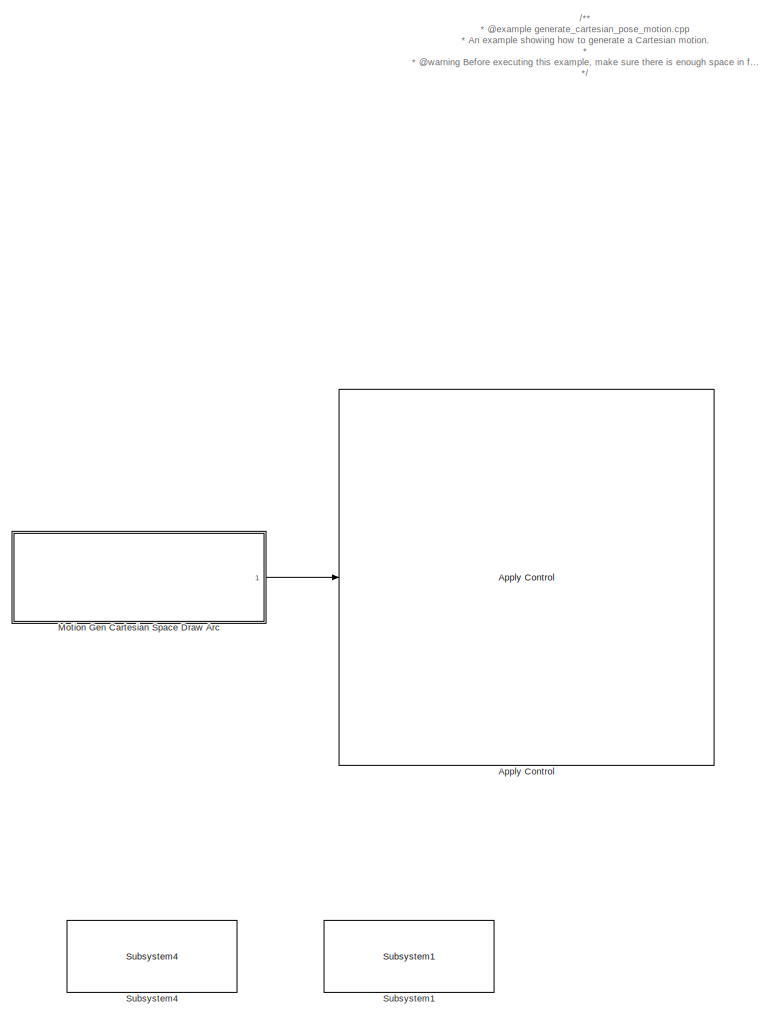
[diagram: root canvas - part 1/4, center side, full height]
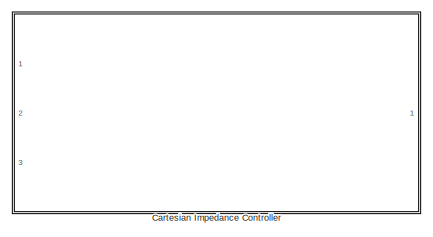
[diagram: root canvas - part 2/4, top left region]
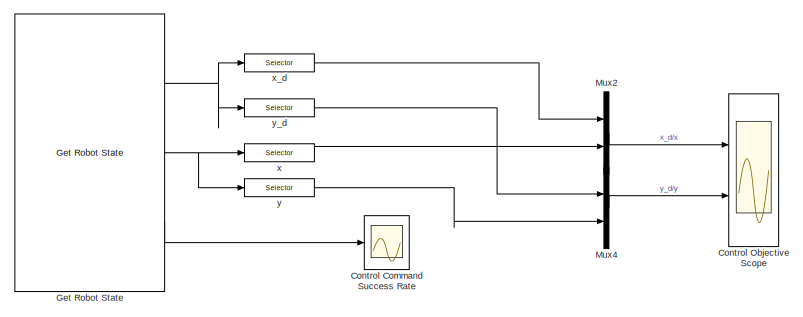
[diagram: root canvas - part 3/4, middle right region]
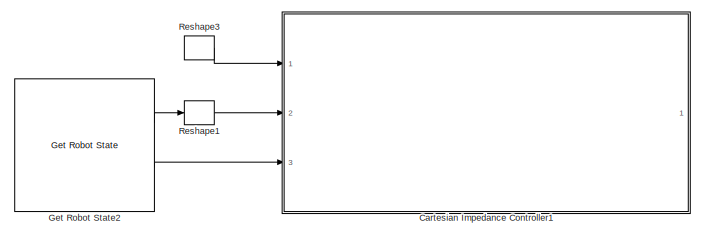
[diagram: root canvas - part 4/4, bottom left region]
MODEL slx_5f6692d43fe2
KIND model
CONFIG AbsTol = auto
CONFIG EnableMultiTasking = on
CONFIG FixedStep = 0.001
CONFIG MaxStep = auto
CONFIG MinStep = auto
CONFIG PreLoadFcn = demos_common_configs();
CONFIG RelTol = 1e-3
CONFIG SampleTimeConstraint = Unconstrained
CONFIG SolverName = FixedStepDiscrete
CONFIG StartTime = 0.0
CONFIG StopTime = inf
BLOCK [Reference] Apply Control  REF=franka_simulink_library/Apply Control
  Ports = [1]
  SourceBlock = franka_simulink_library/Apply Control
  SourceProductName = Franka Emika
  UserDataPersistent = on
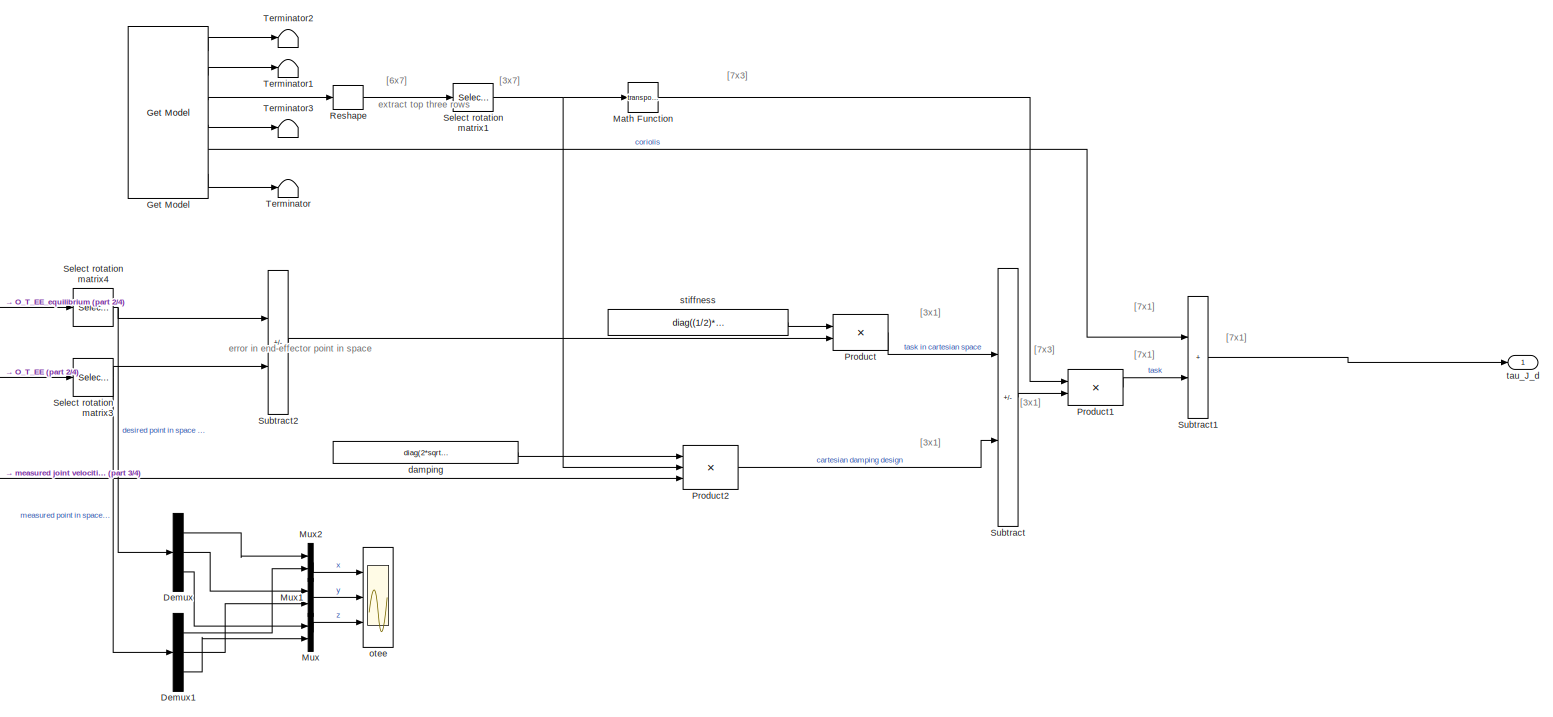
[diagram: Cartesian Impedance Controller - part 1/4, top right region]
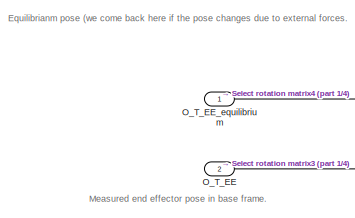
[diagram: Cartesian Impedance Controller - part 2/4, top left region]
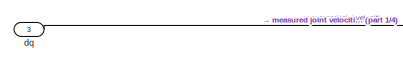
[diagram: Cartesian Impedance Controller - part 3/4, middle left region]
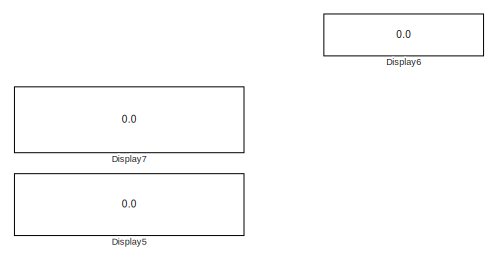
[diagram: Cartesian Impedance Controller - part 4/4, bottom center region]
BLOCK [SubSystem] Cartesian Impedance Controller
  Commented = on
  Ports = [3, 1]
  RequestExecContextInheritance = off
BLOCK [Demux] Cartesian Impedance Controller/Demux
  Outputs = 3
  Ports = [1, 3]
BLOCK [Demux] Cartesian Impedance Controller/Demux1
  Outputs = 3
  Ports = [1, 3]
BLOCK [Display] Cartesian Impedance Controller/Display5
  Decimation = 1
  Ports = [1]
BLOCK [Display] Cartesian Impedance Controller/Display6
  Decimation = 1
  Ports = [1]
BLOCK [Display] Cartesian Impedance Controller/Display7
  Decimation = 1
  Ports = [1]
BLOCK [Reference] Cartesian Impedance Controller/Get Model  REF=franka_simulink_library/Get Model
  Ports = [0, 6]
  SourceBlock = franka_simulink_library/Get Model
  SourceProductName = Franka Emika
BLOCK [Math] Cartesian Impedance Controller/Math Function
  Operator = transpose
  Ports = [1, 1]
  SignedPower = on
BLOCK [Mux] Cartesian Impedance Controller/Mux
  DisplayOption = bar
  Inputs = 2
  Ports = [2, 1]
BLOCK [Mux] Cartesian Impedance Controller/Mux1
  DisplayOption = bar
  Inputs = 2
  Ports = [2, 1]
BLOCK [Mux] Cartesian Impedance Controller/Mux2
  DisplayOption = bar
  Inputs = 2
  Ports = [2, 1]
BLOCK [Inport] Cartesian Impedance Controller/O_T_EE
  Port = 2
BLOCK [Inport] Cartesian Impedance Controller/O_T_EE_equilibrium
BLOCK [Product] Cartesian Impedance Controller/Product
  Multiplication = Matrix(*)
  Ports = [2, 1]
BLOCK [Product] Cartesian Impedance Controller/Product1
  Multiplication = Matrix(*)
  Ports = [2, 1]
BLOCK [Product] Cartesian Impedance Controller/Product2
  Inputs = 3
  Multiplication = Matrix(*)
  Ports = [3, 1]
BLOCK [Reshape] Cartesian Impedance Controller/Reshape
  OutputDimensionality = Customize
  OutputDimensions = [6,7]
  Ports = [1, 1]
BLOCK [Selector] Cartesian Impedance Controller/Select rotation matrix1
  IndexOptions = Index vector (dialog),Index vector (dialog)
  Indices = [1,2,3],[1 2 3 4 5 6 7]
  InputPortWidth = 3
  NumberOfDimensions = 2
  OutputSizes = 1
  Ports = [1, 1]
BLOCK [Selector] Cartesian Impedance Controller/Select rotation matrix3
  IndexOptions = Index vector (dialog),Index vector (dialog)
  Indices = [1,2,3],[4]
  InputPortWidth = 3
  NumberOfDimensions = 2
  OutputSizes = 1
  Ports = [1, 1]
BLOCK [Selector] Cartesian Impedance Controller/Select rotation matrix4
  IndexOptions = Index vector (dialog),Index vector (dialog)
  Indices = [1,2,3],[4]
  InputPortWidth = 3
  NumberOfDimensions = 2
  OutputSizes = 1
  Ports = [1, 1]
BLOCK [Sum] Cartesian Impedance Controller/Subtract
  IconShape = rectangular
  Inputs = +-
  Ports = [2, 1]
BLOCK [Sum] Cartesian Impedance Controller/Subtract1
  IconShape = rectangular
  Ports = [2, 1]
BLOCK [Sum] Cartesian Impedance Controller/Subtract2
  IconShape = rectangular
  Inputs = +-
  Ports = [2, 1]
BLOCK [Terminator] Cartesian Impedance Controller/Terminator
BLOCK [Terminator] Cartesian Impedance Controller/Terminator1
BLOCK [Terminator] Cartesian Impedance Controller/Terminator2
BLOCK [Terminator] Cartesian Impedance Controller/Terminator3
BLOCK [Constant] Cartesian Impedance Controller/damping
  NameLocation = top
  Value = diag(2*sqrt([150.0, 150.0, 150.0]))
  VectorParams1D = off
BLOCK [Inport] Cartesian Impedance Controller/dq
  Port = 3
BLOCK [Scope] Cartesian Impedance Controller/otee
  Floating = off
  NumInputPorts = 3
  Ports = [3]
  ScopeSpecificationString = Simulink.scopes.TimeScopeBlockCfg('CurrentConfiguration', extmgr.ConfigurationSet(extmgr.Configuration('Core','General UI',true),extmgr.Configuration('Core','Source UI',true),extmgr.Configuration('Sources','WiredSimulink',true,'DataLoggingVariableName','ScopeData1','DataLogging',true,'DataLoggingSaveFormat','StructureWithTime'),extmgr.Configuration('Visuals','Time Domain',true,'SerializedDisplays'...<+1691ch>
BLOCK [Constant] Cartesian Impedance Controller/stiffness
  NameLocation = top
  Value = diag((1/2)*[150.0, 150.0, 150.0])
  VectorParams1D = off
BLOCK [Outport] Cartesian Impedance Controller/tau_J_d
  VectorParamsAs1DForOutWhenUnconnected = off
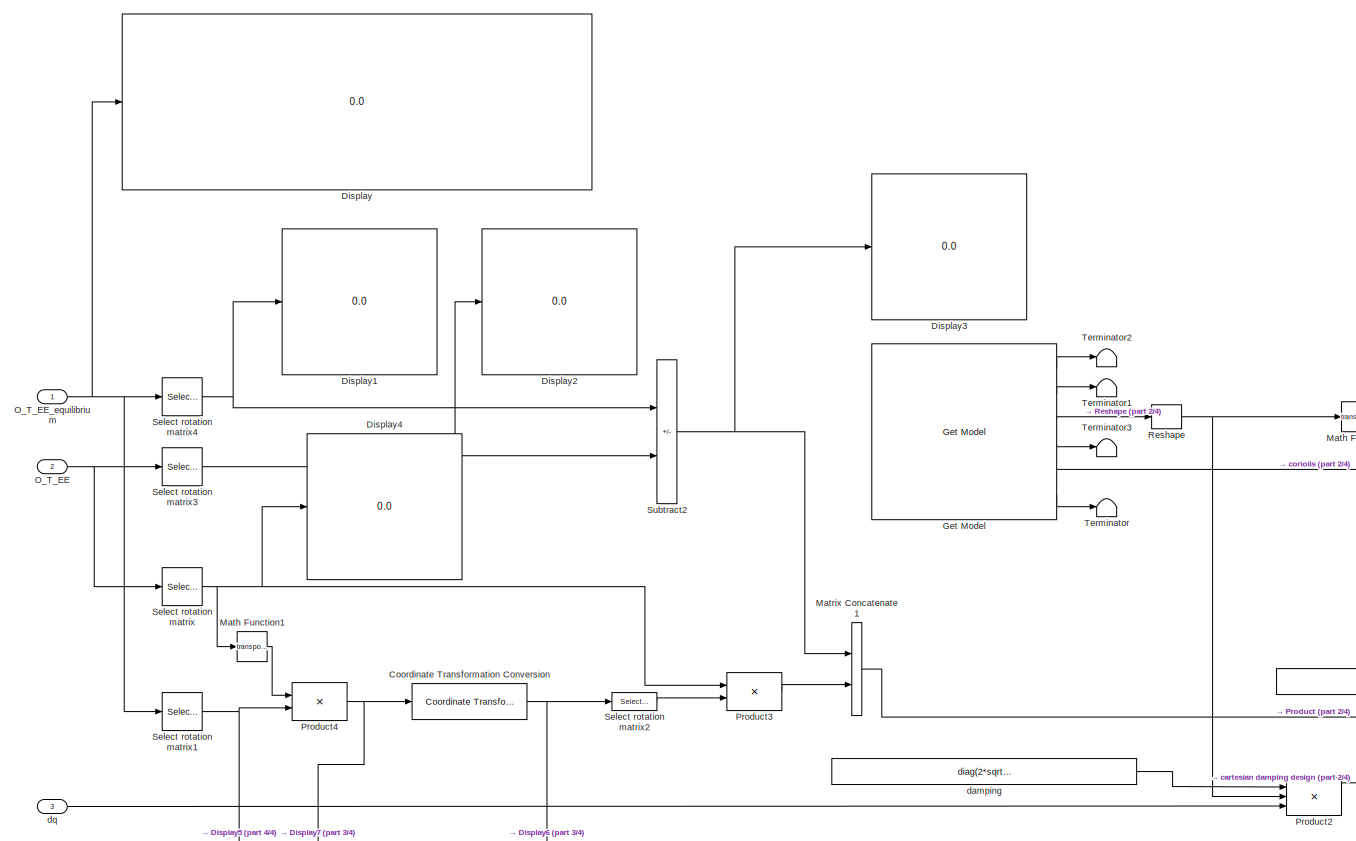
[diagram: Cartesian Impedance Controller1 - part 1/4, top left region]
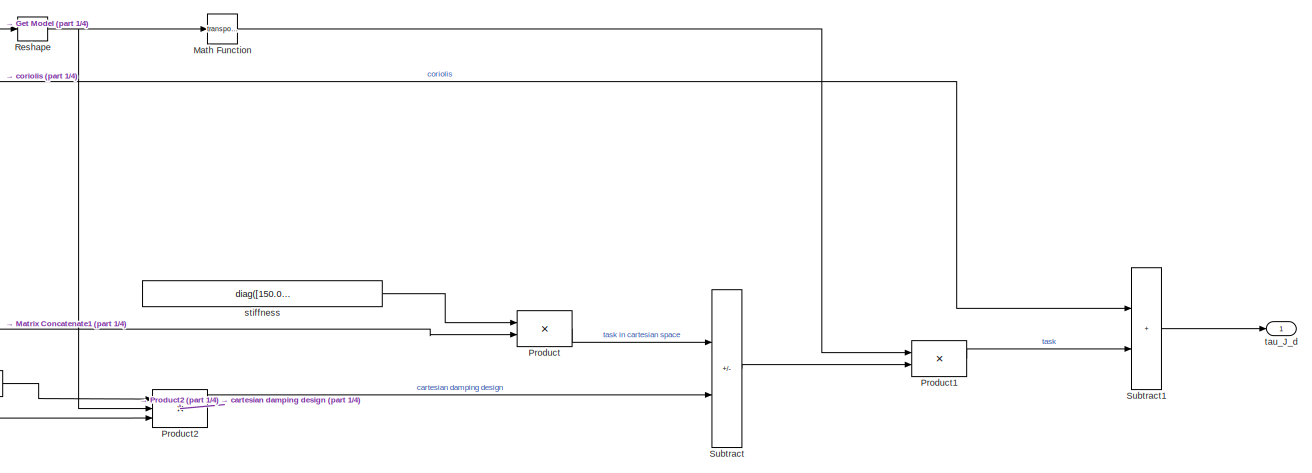
[diagram: Cartesian Impedance Controller1 - part 2/4, middle right region]
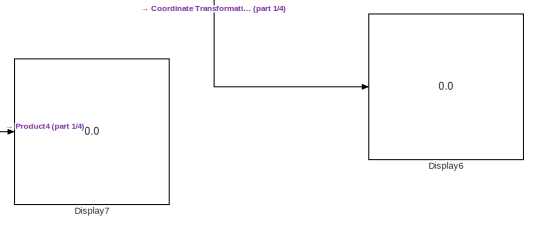
[diagram: Cartesian Impedance Controller1 - part 3/4, bottom left region]
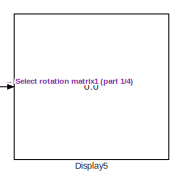
[diagram: Cartesian Impedance Controller1 - part 4/4, bottom left region]
BLOCK [SubSystem] Cartesian Impedance Controller1
  Commented = on
  Ports = [3, 1]
  RequestExecContextInheritance = off
BLOCK [Reference] Cartesian Impedance Controller1/Coordinate Transformation Conversion  REF=robotcorelib/Coordinate Transformation Conversion
  Ports = [1, 1]
  SourceBlock = robotcorelib/Coordinate Transformation Conversion
  SourceProductBaseCode = NV,RO,RR,UV
  SourceType = robotics.slcore.internal.block.CoordinateTransformationConversion
BLOCK [Display] Cartesian Impedance Controller1/Display
  Decimation = 1
  Ports = [1]
BLOCK [Display] Cartesian Impedance Controller1/Display1
  Decimation = 1
  Ports = [1]
BLOCK [Display] Cartesian Impedance Controller1/Display2
  Decimation = 1
  Ports = [1]
BLOCK [Display] Cartesian Impedance Controller1/Display3
  Decimation = 1
  Ports = [1]
BLOCK [Display] Cartesian Impedance Controller1/Display4
  Decimation = 1
  Ports = [1]
BLOCK [Display] Cartesian Impedance Controller1/Display5
  Decimation = 1
  Ports = [1]
BLOCK [Display] Cartesian Impedance Controller1/Display6
  Decimation = 1
  Ports = [1]
BLOCK [Display] Cartesian Impedance Controller1/Display7
  Decimation = 1
  Ports = [1]
BLOCK [Reference] Cartesian Impedance Controller1/Get Model  REF=franka_simulink_library/Get Model
  Ports = [0, 6]
  SourceBlock = franka_simulink_library/Get Model
  SourceProductName = Franka Emika
BLOCK [Math] Cartesian Impedance Controller1/Math Function
  Operator = transpose
  Ports = [1, 1]
  SignedPower = on
BLOCK [Math] Cartesian Impedance Controller1/Math Function1
  Operator = transpose
  Ports = [1, 1]
  SignedPower = on
BLOCK [Concatenate] Cartesian Impedance Controller1/Matrix Concatenate1
  Ports = [2, 1]
BLOCK [Inport] Cartesian Impedance Controller1/O_T_EE
  Port = 2
BLOCK [Inport] Cartesian Impedance Controller1/O_T_EE_equilibrium
BLOCK [Product] Cartesian Impedance Controller1/Product
  Multiplication = Matrix(*)
  Ports = [2, 1]
BLOCK [Product] Cartesian Impedance Controller1/Product1
  Multiplication = Matrix(*)
  Ports = [2, 1]
BLOCK [Product] Cartesian Impedance Controller1/Product2
  Inputs = 3
  Multiplication = Matrix(*)
  Ports = [3, 1]
BLOCK [Product] Cartesian Impedance Controller1/Product3
  Multiplication = Matrix(*)
  Ports = [2, 1]
BLOCK [Product] Cartesian Impedance Controller1/Product4
  Multiplication = Matrix(*)
  Ports = [2, 1]
BLOCK [Reshape] Cartesian Impedance Controller1/Reshape
  OutputDimensionality = Customize
  OutputDimensions = [6,7]
  Ports = [1, 1]
BLOCK [Selector] Cartesian Impedance Controller1/Select rotation matrix
  IndexOptions = Index vector (dialog),Index vector (dialog)
  Indices = [1,2,3],[1 2 3]
  InputPortWidth = 3
  NumberOfDimensions = 2
  OutputSizes = 1
  Ports = [1, 1]
BLOCK [Selector] Cartesian Impedance Controller1/Select rotation matrix1
  IndexOptions = Index vector (dialog),Index vector (dialog)
  Indices = [1,2,3],[1 2 3]
  InputPortWidth = 3
  NumberOfDimensions = 2
  OutputSizes = 1
  Ports = [1, 1]
BLOCK [Selector] Cartesian Impedance Controller1/Select rotation matrix2
  IndexOptions = Index vector (dialog)
  Indices = [2,3,4]
  InputPortWidth = 4
  OutputSizes = 1
  Ports = [1, 1]
BLOCK [Selector] Cartesian Impedance Controller1/Select rotation matrix3
  IndexOptions = Index vector (dialog),Index vector (dialog)
  Indices = [1,2,3],[4]
  InputPortWidth = 3
  NumberOfDimensions = 2
  OutputSizes = 1
  Ports = [1, 1]
BLOCK [Selector] Cartesian Impedance Controller1/Select rotation matrix4
  IndexOptions = Index vector (dialog),Index vector (dialog)
  Indices = [1,2,3],[4]
  InputPortWidth = 3
  NumberOfDimensions = 2
  OutputSizes = 1
  Ports = [1, 1]
BLOCK [Sum] Cartesian Impedance Controller1/Subtract
  IconShape = rectangular
  Inputs = +-
  Ports = [2, 1]
BLOCK [Sum] Cartesian Impedance Controller1/Subtract1
  IconShape = rectangular
  Ports = [2, 1]
BLOCK [Sum] Cartesian Impedance Controller1/Subtract2
  IconShape = rectangular
  Inputs = +-
  Ports = [2, 1]
BLOCK [Terminator] Cartesian Impedance Controller1/Terminator
BLOCK [Terminator] Cartesian Impedance Controller1/Terminator1
BLOCK [Terminator] Cartesian Impedance Controller1/Terminator2
BLOCK [Terminator] Cartesian Impedance Controller1/Terminator3
BLOCK [Constant] Cartesian Impedance Controller1/damping
  Value = diag(2*sqrt([150.0, 150.0, 150.0, 50.0, 50.0, 50.0]))
  VectorParams1D = off
BLOCK [Inport] Cartesian Impedance Controller1/dq
  Port = 3
BLOCK [Constant] Cartesian Impedance Controller1/stiffness
  Value = diag([150.0, 150.0, 150.0, 50.0, 50.0, 50.0])
  VectorParams1D = off
BLOCK [Outport] Cartesian Impedance Controller1/tau_J_d
  VectorParamsAs1DForOutWhenUnconnected = off
BLOCK [Scope] Control Command Success Rate
  Floating = off
  NumInputPorts = 1
  Ports = [1]
  ScopeSpecificationString = Simulink.scopes.TimeScopeBlockCfg('CurrentConfiguration', extmgr.ConfigurationSet(extmgr.Configuration('Core','General UI',true),extmgr.Configuration('Core','Source UI',true),extmgr.Configuration('Sources','WiredSimulink',true,'DataLoggingVariableName','ScopeData1','DataLoggingSaveFormat','StructureWithTime','DataLoggingDecimation','1','DataLoggingDecimateData',true),extmgr.Configuration('Visuals'...<+1651ch>
BLOCK [Scope] Control Objective Scope
  ExtModeUploadOption = log
  Floating = off
  NumInputPorts = 2
  Ports = [2]
  ScopeSpecificationString = Simulink.scopes.TimeScopeBlockCfg('CurrentConfiguration', extmgr.ConfigurationSet(extmgr.Configuration('Core','General UI',true),extmgr.Configuration('Core','Source UI',true),extmgr.Configuration('Sources','WiredSimulink',true,'DataLoggingVariableName','control_scope','DataLoggingSaveFormat','StructureWithTime','DataLoggingDecimation','1','DataLogging',true),extmgr.Configuration('Visuals','Time Do...<+2262ch>
BLOCK [Reference] Get Robot State  REF=franka_simulink_library/Get Robot State
  Ports = [0, 3]
  SourceBlock = franka_simulink_library/Get Robot State
  SourceProductName = Franka Emika
BLOCK [Reference] Get Robot State2  REF=franka_simulink_library/Get Robot State
  Commented = on
  Ports = [0, 2]
  SourceBlock = franka_simulink_library/Get Robot State
  SourceProductName = Franka Emika
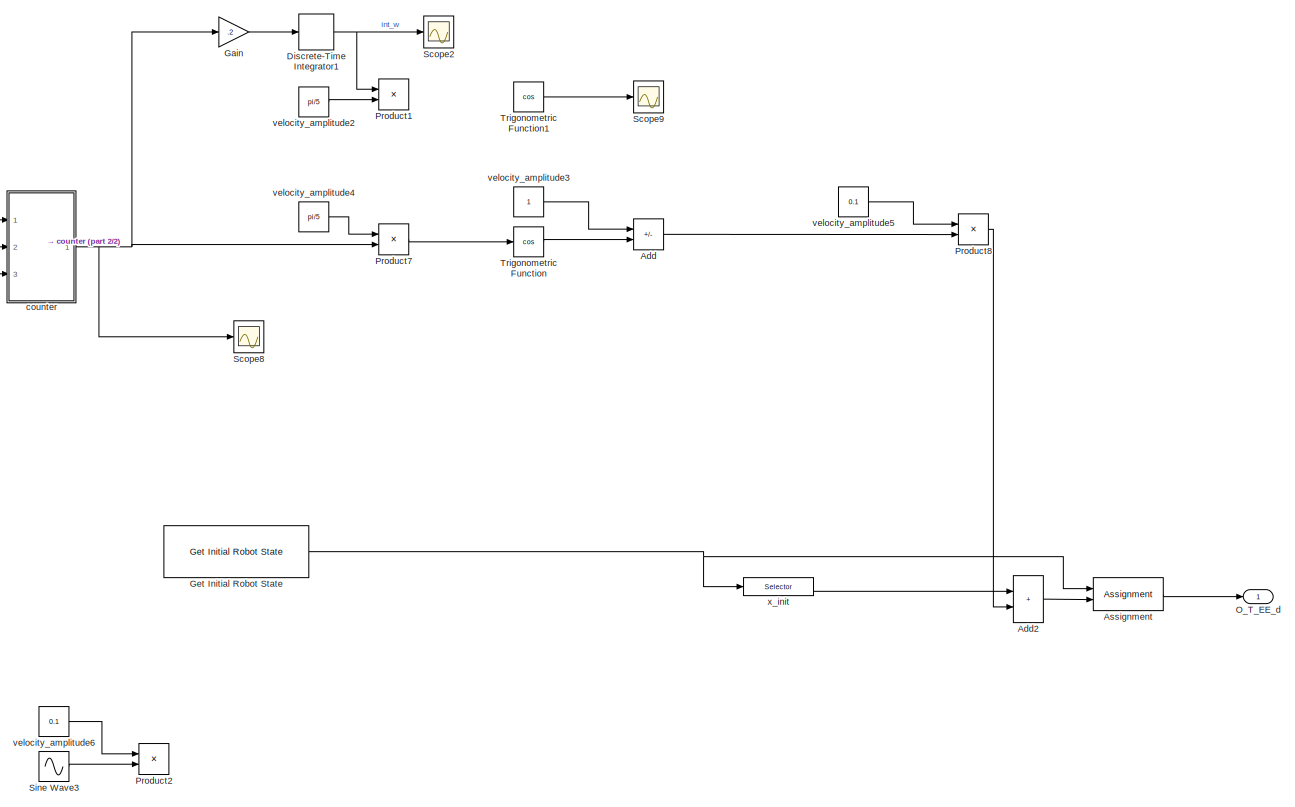
[diagram: Motion Gen Cartesian Space Draw Arc - part 1/2, right side, full height]
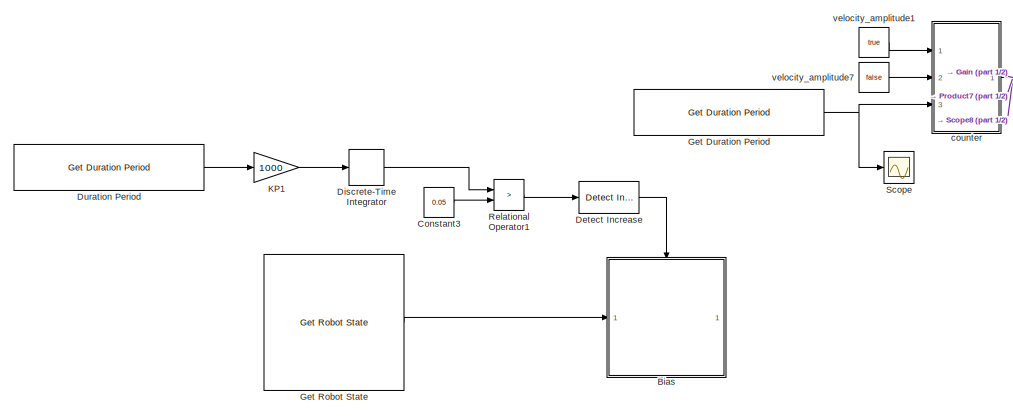
[diagram: Motion Gen Cartesian Space Draw Arc - part 2/2, middle left region]
BLOCK [SubSystem] Motion Gen Cartesian Space Draw Arc
  Ports = [0, 1]
  RequestExecContextInheritance = off
BLOCK [Sum] Motion Gen Cartesian Space Draw Arc/Add
  IconShape = rectangular
  Inputs = +-
  Ports = [2, 1]
BLOCK [Sum] Motion Gen Cartesian Space Draw Arc/Add2
  IconShape = rectangular
  Ports = [2, 1]
BLOCK [Assignment] Motion Gen Cartesian Space Draw Arc/Assignment
  DiagnosticForDimensions = Warning
  IndexOptions = Index vector (dialog)
  Indices = 13
  OutputSizes = 1
  Ports = [2, 1]
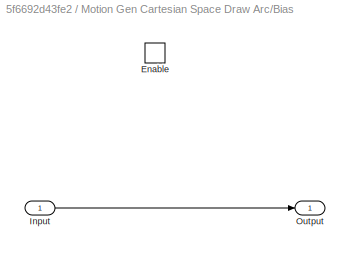
BLOCK [SubSystem] Motion Gen Cartesian Space Draw Arc/Bias
  Commented = on
  Ports = [1, 1, 1]
  RequestExecContextInheritance = off
BLOCK [EnablePort] Motion Gen Cartesian Space Draw Arc/Bias/Enable
  Ports = []
BLOCK [Inport] Motion Gen Cartesian Space Draw Arc/Bias/Input
BLOCK [Outport] Motion Gen Cartesian Space Draw Arc/Bias/Output
BLOCK [Constant] Motion Gen Cartesian Space Draw Arc/Constant3
  Commented = on
  Value = 0.05
BLOCK [Reference] Motion Gen Cartesian Space Draw Arc/Detect Increase  REF=simulink/Logic and Bit
Operations/Detect
Increase
  Commented = on
  Ports = [1, 1]
  SourceBlock = simulink/Logic and Bit\nOperations/Detect\nIncrease
  SourceProductBaseCode = SL
  SourceType = Detect Increase
BLOCK [DiscreteIntegrator] Motion Gen Cartesian Space Draw Arc/Discrete-Time Integrator
  Commented = on
  ICPrevOutput = DiscIntNeverNeededParam
  ICPrevScaledInput = DiscIntNeverNeededParam
  Ports = [1, 1]
  SampleTime = -1
BLOCK [DiscreteIntegrator] Motion Gen Cartesian Space Draw Arc/Discrete-Time Integrator1
  ICPrevOutput = DiscIntNeverNeededParam
  ICPrevScaledInput = DiscIntNeverNeededParam
  InitialConditionSetting = Auto
  Ports = [1, 1]
  SampleTime = 1e-3
BLOCK [Reference] Motion Gen Cartesian Space Draw Arc/Duration Period  REF=franka_simulink_library/Get Duration Period
  Commented = on
  Ports = [0, 1]
  SourceBlock = franka_simulink_library/Get Duration Period
  SourceProductName = Franka Emika
BLOCK [Gain] Motion Gen Cartesian Space Draw Arc/Gain
  Gain = .2
BLOCK [Reference] Motion Gen Cartesian Space Draw Arc/Get Duration Period  REF=franka_simulink_library/Get Duration Period
  Ports = [0, 1]
  SourceBlock = franka_simulink_library/Get Duration Period
  SourceProductName = Franka Emika
BLOCK [Reference] Motion Gen Cartesian Space Draw Arc/Get Initial Robot State  REF=franka_simulink_library/Get Initial Robot State
  Ports = [0, 1]
  SourceBlock = franka_simulink_library/Get Initial Robot State
  SourceProductName = Franka Emika
BLOCK [Reference] Motion Gen Cartesian Space Draw Arc/Get Robot State  REF=franka_simulink_library/Get Robot State
  Commented = on
  Ports = [0, 1]
  SourceBlock = franka_simulink_library/Get Robot State
  SourceProductName = Franka Emika
BLOCK [Gain] Motion Gen Cartesian Space Draw Arc/KP1
  Commented = on
  Gain = 1000
BLOCK [Outport] Motion Gen Cartesian Space Draw Arc/O_T_EE_d
  VectorParamsAs1DForOutWhenUnconnected = off
BLOCK [Product] Motion Gen Cartesian Space Draw Arc/Product1
  Ports = [2, 1]
BLOCK [Product] Motion Gen Cartesian Space Draw Arc/Product2
  Commented = on
  Ports = [2, 1]
BLOCK [Product] Motion Gen Cartesian Space Draw Arc/Product7
  Ports = [2, 1]
BLOCK [Product] Motion Gen Cartesian Space Draw Arc/Product8
  Ports = [2, 1]
BLOCK [RelationalOperator] Motion Gen Cartesian Space Draw Arc/Relational Operator1
  Commented = on
  InputSameDT = off
  Operator = >
  OutDataTypeStr = boolean
  Ports = [2, 1]
BLOCK [Scope] Motion Gen Cartesian Space Draw Arc/Scope
  Floating = off
  NumInputPorts = 1
  Ports = [1]
  ScopeSpecificationString = Simulink.scopes.TimeScopeBlockCfg('CurrentConfiguration', extmgr.ConfigurationSet(extmgr.Configuration('Core','General UI',true),extmgr.Configuration('Core','Source UI',true),extmgr.Configuration('Sources','WiredSimulink',true,'DataLoggingVariableName','ScopeData1'),extmgr.Configuration('Visuals','Time Domain',true,'SerializedDisplays',{struct('MinYLimReal','-0.00012','MaxYLimReal','0.00113','YLab...<+1431ch>
BLOCK [Scope] Motion Gen Cartesian Space Draw Arc/Scope2
  Floating = off
  NumInputPorts = 1
  Ports = [1]
  ScopeSpecificationString = Simulink.scopes.TimeScopeBlockCfg('CurrentConfiguration', extmgr.ConfigurationSet(extmgr.Configuration('Core','General UI',true),extmgr.Configuration('Core','Source UI',true),extmgr.Configuration('Sources','WiredSimulink',true,'DataLoggingVariableName','ScopeData2'),extmgr.Configuration('Visuals','Time Domain',true,'SerializedDisplays',{struct('MinYLimReal','0.2073','MaxYLimReal','0.21171','YLabel...<+1551ch>
BLOCK [Scope] Motion Gen Cartesian Space Draw Arc/Scope8
  Floating = off
  NumInputPorts = 1
  Ports = [1]
  ScopeSpecificationString = Simulink.scopes.TimeScopeBlockCfg('CurrentConfiguration', extmgr.ConfigurationSet(extmgr.Configuration('Core','General UI',true),extmgr.Configuration('Core','Source UI',true),extmgr.Configuration('Sources','WiredSimulink',true,'DataLoggingVariableName','ScopeData6'),extmgr.Configuration('Visuals','Time Domain',true,'SerializedDisplays',{struct('MinYLimReal','0.16852','MaxYLimReal','0.18906','YLabe...<+1555ch>
BLOCK [Scope] Motion Gen Cartesian Space Draw Arc/Scope9
  Floating = off
  NumInputPorts = 1
  Ports = [1]
  ScopeSpecificationString = Simulink.scopes.TimeScopeBlockCfg('CurrentConfiguration', extmgr.ConfigurationSet(extmgr.Configuration('Core','General UI',true),extmgr.Configuration('Core','Source UI',true),extmgr.Configuration('Sources','WiredSimulink',true,'DataLoggingVariableName','ScopeData7'),extmgr.Configuration('Visuals','Time Domain',true,'SerializedDisplays',{struct('MinYLimReal','0.99999999999992','MaxYLimReal','1.0000...<+1913ch>
BLOCK [Sin] Motion Gen Cartesian Space Draw Arc/Sine Wave3
  Bias = 1
  Commented = on
  Offset = 7500
  Ports = [0, 1]
  SampleTime = 1e-3
  Samples = 10e3
  SineType = Sample based
BLOCK [Trigonometry] Motion Gen Cartesian Space Draw Arc/Trigonometric Function
  NumberOfIterations = 50
  Operator = cos
  Ports = [1, 1]
BLOCK [Trigonometry] Motion Gen Cartesian Space Draw Arc/Trigonometric Function1
  NumberOfIterations = 50
  Operator = cos
  Ports = [1, 1]
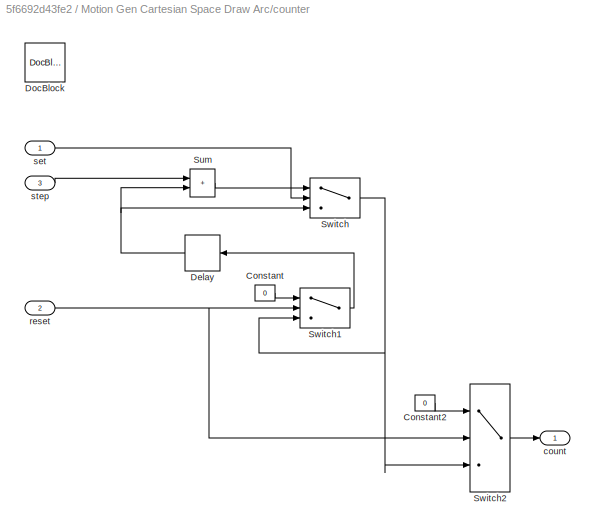
BLOCK [SubSystem] Motion Gen Cartesian Space Draw Arc/counter
  Ports = [3, 1]
  RequestExecContextInheritance = off
BLOCK [Constant] Motion Gen Cartesian Space Draw Arc/counter/Constant
  OutDataTypeStr = double
  Value = 0
BLOCK [Constant] Motion Gen Cartesian Space Draw Arc/counter/Constant2
  OutDataTypeStr = double
  Value = 0
BLOCK [Delay] Motion Gen Cartesian Space Draw Arc/counter/Delay
  DelayLength = 1
  InitialCondition = 0
  InputPortMap = u0
  Ports = [1, 1]
BLOCK [Reference] Motion Gen Cartesian Space Draw Arc/counter/DocBlock  REF=simulink/Model-Wide
Utilities/DocBlock
  Ports = []
  SourceBlock = simulink/Model-Wide\nUtilities/DocBlock
  SourceProductBaseCode = SL
  SourceType = DocBlock
  UserDataPersistent = on
BLOCK [Sum] Motion Gen Cartesian Space Draw Arc/counter/Sum
  IconShape = rectangular
  Inputs = |++
  Ports = [2, 1]
BLOCK [Switch] Motion Gen Cartesian Space Draw Arc/counter/Switch
  Criteria = u2 > Threshold
  InputSameDT = off
  SaturateOnIntegerOverflow = off
BLOCK [Switch] Motion Gen Cartesian Space Draw Arc/counter/Switch1
  Criteria = u2 > Threshold
  InputSameDT = off
  OutDataTypeStr = double
  SaturateOnIntegerOverflow = off
BLOCK [Switch] Motion Gen Cartesian Space Draw Arc/counter/Switch2
  Criteria = u2 > Threshold
  InputSameDT = off
  OutDataTypeStr = double
  SaturateOnIntegerOverflow = off
BLOCK [Outport] Motion Gen Cartesian Space Draw Arc/counter/count
  OutDataTypeStr = double
  VectorParamsAs1DForOutWhenUnconnected = off
BLOCK [Inport] Motion Gen Cartesian Space Draw Arc/counter/reset
  OutDataTypeStr = boolean
  Port = 2
BLOCK [Inport] Motion Gen Cartesian Space Draw Arc/counter/set
  OutDataTypeStr = boolean
BLOCK [Inport] Motion Gen Cartesian Space Draw Arc/counter/step
  OutDataTypeStr = double
  Port = 3
BLOCK [Constant] Motion Gen Cartesian Space Draw Arc/velocity_amplitude1
  Value = true
  VectorParams1D = off
BLOCK [Constant] Motion Gen Cartesian Space Draw Arc/velocity_amplitude2
  Value = pi/5
  VectorParams1D = off
BLOCK [Constant] Motion Gen Cartesian Space Draw Arc/velocity_amplitude3
  VectorParams1D = off
BLOCK [Constant] Motion Gen Cartesian Space Draw Arc/velocity_amplitude4
  Value = pi/5
  VectorParams1D = off
BLOCK [Constant] Motion Gen Cartesian Space Draw Arc/velocity_amplitude5
  Value = 0.1
  VectorParams1D = off
BLOCK [Constant] Motion Gen Cartesian Space Draw Arc/velocity_amplitude6
  Commented = on
  Value = 0.1
  VectorParams1D = off
BLOCK [Constant] Motion Gen Cartesian Space Draw Arc/velocity_amplitude7
  Value = false
  VectorParams1D = off
BLOCK [Selector] Motion Gen Cartesian Space Draw Arc/x_init
  IndexOptions = Index vector (dialog)
  Indices = 13
  InputPortWidth = 16
  OutputSizes = 1
  Ports = [1, 1]
BLOCK [Mux] Mux2
  DisplayOption = bar
  Inputs = 2
  Ports = [2, 1]
BLOCK [Mux] Mux4
  DisplayOption = bar
  Inputs = 2
  Ports = [2, 1]
BLOCK [Reshape] Reshape1
  Commented = on
  OutputDimensionality = Customize
  OutputDimensions = [4,4]
  Ports = [1, 1]
BLOCK [Reshape] Reshape3
  Commented = on
  OutputDimensionality = Customize
  OutputDimensions = [4,4]
  Ports = [1, 1]
BLOCK [Reference] Subsystem1  REF=franka_simulink_library_misc/Subsystem1
  Ports = []
  SourceBlock = franka_simulink_library_misc/Subsystem1
BLOCK [Reference] Subsystem4  REF=franka_simulink_library_misc/Subsystem4
  Ports = []
  SourceBlock = franka_simulink_library_misc/Subsystem4
BLOCK [Selector] x
  IndexOptions = Index vector (dialog)
  Indices = 13
  InputPortWidth = 16
  OutputSizes = 1
  Ports = [1, 1]
BLOCK [Selector] x_d
  IndexOptions = Index vector (dialog)
  Indices = 13
  InputPortWidth = 16
  OutputSizes = 1
  Ports = [1, 1]
BLOCK [Selector] y
  IndexOptions = Index vector (dialog)
  Indices = 14
  InputPortWidth = 16
  OutputSizes = 1
  Ports = [1, 1]
BLOCK [Selector] y_d
  IndexOptions = Index vector (dialog)
  Indices = 14
  InputPortWidth = 16
  OutputSizes = 1
  Ports = [1, 1]
ANNOTATION (root): /** * @example generate_cartesian_pose_motion.cpp * An example showing how to generate a Cartesian motion. * * @warning Before executing this example, make sure there is enough space in front of the robot. */
ANNOTATION Cartesian Impedance Controller: Equilibrianm pose (we come back here if the pose changes due to external forces.
ANNOTATION Cartesian Impedance Controller: Measured end effector pose in base frame.
ANNOTATION Cartesian Impedance Controller: [3x1]
ANNOTATION Cartesian Impedance Controller: [3x7]
ANNOTATION Cartesian Impedance Controller: [6x7]
ANNOTATION Cartesian Impedance Controller: [7x1]
ANNOTATION Cartesian Impedance Controller: [7x3]
ANNOTATION Cartesian Impedance Controller: error in end-effector point in space
ANNOTATION Cartesian Impedance Controller: extract top three rows
LINE Cartesian Impedance Controller/Demux1:1 -> Cartesian Impedance Controller/Mux2:2
LINE Cartesian Impedance Controller/Demux1:2 -> Cartesian Impedance Controller/Mux1:2
LINE Cartesian Impedance Controller/Demux1:3 -> Cartesian Impedance Controller/Mux:2
LINE Cartesian Impedance Controller/Demux:1 -> Cartesian Impedance Controller/Mux2:1
LINE Cartesian Impedance Controller/Demux:2 -> Cartesian Impedance Controller/Mux1:1
LINE Cartesian Impedance Controller/Demux:3 -> Cartesian Impedance Controller/Mux:1
LINE Cartesian Impedance Controller/Get Model:1 -> Cartesian Impedance Controller/Terminator2:1
LINE Cartesian Impedance Controller/Get Model:2 -> Cartesian Impedance Controller/Terminator1:1
LINE Cartesian Impedance Controller/Get Model:3 -> Cartesian Impedance Controller/Reshape:1
LINE Cartesian Impedance Controller/Get Model:4 -> Cartesian Impedance Controller/Terminator3:1
LINE Cartesian Impedance Controller/Get Model:5 -> Cartesian Impedance Controller/Subtract1:1
LINE Cartesian Impedance Controller/Get Model:6 -> Cartesian Impedance Controller/Terminator:1
LINE Cartesian Impedance Controller/Math Function:1 -> Cartesian Impedance Controller/Product1:1
LINE Cartesian Impedance Controller/Mux1:1 -> Cartesian Impedance Controller/otee:2
LINE Cartesian Impedance Controller/Mux2:1 -> Cartesian Impedance Controller/otee:1
LINE Cartesian Impedance Controller/Mux:1 -> Cartesian Impedance Controller/otee:3
LINE Cartesian Impedance Controller/O_T_EE:1 -> Cartesian Impedance Controller/Select rotation matrix3:1
LINE Cartesian Impedance Controller/O_T_EE_equilibrium:1 -> Cartesian Impedance Controller/Select rotation matrix4:1
LINE Cartesian Impedance Controller/Product1:1 -> Cartesian Impedance Controller/Subtract1:2
LINE Cartesian Impedance Controller/Product2:1 -> Cartesian Impedance Controller/Subtract:2
LINE Cartesian Impedance Controller/Product:1 -> Cartesian Impedance Controller/Subtract:1
LINE Cartesian Impedance Controller/Reshape:1 -> Cartesian Impedance Controller/Select rotation matrix1:1
NET Cartesian Impedance Controller/Select rotation matrix1:1 -> Cartesian Impedance Controller/Math Function:1, Cartesian Impedance Controller/Product2:2
NET Cartesian Impedance Controller/Select rotation matrix3:1 -> Cartesian Impedance Controller/Demux1:1, Cartesian Impedance Controller/Subtract2:2
NET Cartesian Impedance Controller/Select rotation matrix4:1 -> Cartesian Impedance Controller/Demux:1, Cartesian Impedance Controller/Subtract2:1
LINE Cartesian Impedance Controller/Subtract1:1 -> Cartesian Impedance Controller/tau_J_d:1
LINE Cartesian Impedance Controller/Subtract2:1 -> Cartesian Impedance Controller/Product:2
LINE Cartesian Impedance Controller/Subtract:1 -> Cartesian Impedance Controller/Product1:2
LINE Cartesian Impedance Controller/damping:1 -> Cartesian Impedance Controller/Product2:1
LINE Cartesian Impedance Controller/dq:1 -> Cartesian Impedance Controller/Product2:3
LINE Cartesian Impedance Controller/stiffness:1 -> Cartesian Impedance Controller/Product:1
NET Cartesian Impedance Controller1/Coordinate Transformation Conversion:1 -> Cartesian Impedance Controller1/Display6:1, Cartesian Impedance Controller1/Select rotation matrix2:1
LINE Cartesian Impedance Controller1/Get Model:1 -> Cartesian Impedance Controller1/Terminator2:1
LINE Cartesian Impedance Controller1/Get Model:2 -> Cartesian Impedance Controller1/Terminator1:1
LINE Cartesian Impedance Controller1/Get Model:3 -> Cartesian Impedance Controller1/Reshape:1
LINE Cartesian Impedance Controller1/Get Model:4 -> Cartesian Impedance Controller1/Terminator3:1
LINE Cartesian Impedance Controller1/Get Model:5 -> Cartesian Impedance Controller1/Subtract1:1
LINE Cartesian Impedance Controller1/Get Model:6 -> Cartesian Impedance Controller1/Terminator:1
LINE Cartesian Impedance Controller1/Math Function1:1 -> Cartesian Impedance Controller1/Product4:1
LINE Cartesian Impedance Controller1/Math Function:1 -> Cartesian Impedance Controller1/Product1:1
LINE Cartesian Impedance Controller1/Matrix Concatenate1:1 -> Cartesian Impedance Controller1/Product:2
NET Cartesian Impedance Controller1/O_T_EE:1 -> Cartesian Impedance Controller1/Select rotation matrix3:1, Cartesian Impedance Controller1/Select rotation matrix:1
NET Cartesian Impedance Controller1/O_T_EE_equilibrium:1 -> Cartesian Impedance Controller1/Display:1, Cartesian Impedance Controller1/Select rotation matrix1:1, Cartesian Impedance Controller1/Select rotation matrix4:1
LINE Cartesian Impedance Controller1/Product1:1 -> Cartesian Impedance Controller1/Subtract1:2
LINE Cartesian Impedance Controller1/Product2:1 -> Cartesian Impedance Controller1/Subtract:2
LINE Cartesian Impedance Controller1/Product3:1 -> Cartesian Impedance Controller1/Matrix Concatenate1:2
NET Cartesian Impedance Controller1/Product4:1 -> Cartesian Impedance Controller1/Coordinate Transformation Conversion:1, Cartesian Impedance Controller1/Display7:1
LINE Cartesian Impedance Controller1/Product:1 -> Cartesian Impedance Controller1/Subtract:1
NET Cartesian Impedance Controller1/Reshape:1 -> Cartesian Impedance Controller1/Math Function:1, Cartesian Impedance Controller1/Product2:2
NET Cartesian Impedance Controller1/Select rotation matrix1:1 -> Cartesian Impedance Controller1/Display5:1, Cartesian Impedance Controller1/Product4:2
LINE Cartesian Impedance Controller1/Select rotation matrix2:1 -> Cartesian Impedance Controller1/Product3:2
NET Cartesian Impedance Controller1/Select rotation matrix3:1 -> Cartesian Impedance Controller1/Display2:1, Cartesian Impedance Controller1/Subtract2:2
NET Cartesian Impedance Controller1/Select rotation matrix4:1 -> Cartesian Impedance Controller1/Display1:1, Cartesian Impedance Controller1/Subtract2:1
NET Cartesian Impedance Controller1/Select rotation matrix:1 -> Cartesian Impedance Controller1/Display4:1, Cartesian Impedance Controller1/Math Function1:1, Cartesian Impedance Controller1/Product3:1
LINE Cartesian Impedance Controller1/Subtract1:1 -> Cartesian Impedance Controller1/tau_J_d:1
NET Cartesian Impedance Controller1/Subtract2:1 -> Cartesian Impedance Controller1/Display3:1, Cartesian Impedance Controller1/Matrix Concatenate1:1
LINE Cartesian Impedance Controller1/Subtract:1 -> Cartesian Impedance Controller1/Product1:2
LINE Cartesian Impedance Controller1/damping:1 -> Cartesian Impedance Controller1/Product2:1
LINE Cartesian Impedance Controller1/dq:1 -> Cartesian Impedance Controller1/Product2:3
LINE Cartesian Impedance Controller1/stiffness:1 -> Cartesian Impedance Controller1/Product:1
LINE Get Robot State2:1 -> Reshape1:1
LINE Get Robot State2:2 -> Cartesian Impedance Controller1:3
NET Get Robot State:1 -> x_d:1, y_d:1
NET Get Robot State:2 -> x:1, y:1
LINE Get Robot State:3 -> Control Command Success Rate:1
LINE Motion Gen Cartesian Space Draw Arc/Add2:1 -> Motion Gen Cartesian Space Draw Arc/Assignment:2
LINE Motion Gen Cartesian Space Draw Arc/Add:1 -> Motion Gen Cartesian Space Draw Arc/Product8:2
LINE Motion Gen Cartesian Space Draw Arc/Assignment:1 -> Motion Gen Cartesian Space Draw Arc/O_T_EE_d:1
LINE Motion Gen Cartesian Space Draw Arc/Bias/Input:1 -> Motion Gen Cartesian Space Draw Arc/Bias/Output:1
LINE Motion Gen Cartesian Space Draw Arc/Constant3:1 -> Motion Gen Cartesian Space Draw Arc/Relational Operator1:2
LINE Motion Gen Cartesian Space Draw Arc/Detect Increase:1 -> Motion Gen Cartesian Space Draw Arc/Bias:enable
NET Motion Gen Cartesian Space Draw Arc/Discrete-Time Integrator1:1 -> Motion Gen Cartesian Space Draw Arc/Product1:1, Motion Gen Cartesian Space Draw Arc/Scope2:1
LINE Motion Gen Cartesian Space Draw Arc/Discrete-Time Integrator:1 -> Motion Gen Cartesian Space Draw Arc/Relational Operator1:1
LINE Motion Gen Cartesian Space Draw Arc/Duration Period:1 -> Motion Gen Cartesian Space Draw Arc/KP1:1
LINE Motion Gen Cartesian Space Draw Arc/Gain:1 -> Motion Gen Cartesian Space Draw Arc/Discrete-Time Integrator1:1
NET Motion Gen Cartesian Space Draw Arc/Get Duration Period:1 -> Motion Gen Cartesian Space Draw Arc/Scope:1, Motion Gen Cartesian Space Draw Arc/counter:3
NET Motion Gen Cartesian Space Draw Arc/Get Initial Robot State:1 -> Motion Gen Cartesian Space Draw Arc/Assignment:1, Motion Gen Cartesian Space Draw Arc/x_init:1
LINE Motion Gen Cartesian Space Draw Arc/Get Robot State:1 -> Motion Gen Cartesian Space Draw Arc/Bias:1
LINE Motion Gen Cartesian Space Draw Arc/KP1:1 -> Motion Gen Cartesian Space Draw Arc/Discrete-Time Integrator:1
LINE Motion Gen Cartesian Space Draw Arc/Product7:1 -> Motion Gen Cartesian Space Draw Arc/Trigonometric Function:1
LINE Motion Gen Cartesian Space Draw Arc/Product8:1 -> Motion Gen Cartesian Space Draw Arc/Add2:2
LINE Motion Gen Cartesian Space Draw Arc/Relational Operator1:1 -> Motion Gen Cartesian Space Draw Arc/Detect Increase:1
LINE Motion Gen Cartesian Space Draw Arc/Sine Wave3:1 -> Motion Gen Cartesian Space Draw Arc/Product2:2
LINE Motion Gen Cartesian Space Draw Arc/Trigonometric Function1:1 -> Motion Gen Cartesian Space Draw Arc/Scope9:1
LINE Motion Gen Cartesian Space Draw Arc/Trigonometric Function:1 -> Motion Gen Cartesian Space Draw Arc/Add:2
LINE Motion Gen Cartesian Space Draw Arc/counter/Constant2:1 -> Motion Gen Cartesian Space Draw Arc/counter/Switch2:1
LINE Motion Gen Cartesian Space Draw Arc/counter/Constant:1 -> Motion Gen Cartesian Space Draw Arc/counter/Switch1:1
NET Motion Gen Cartesian Space Draw Arc/counter/Delay:1 -> Motion Gen Cartesian Space Draw Arc/counter/Sum:2, Motion Gen Cartesian Space Draw Arc/counter/Switch:3
LINE Motion Gen Cartesian Space Draw Arc/counter/Sum:1 -> Motion Gen Cartesian Space Draw Arc/counter/Switch:1
LINE Motion Gen Cartesian Space Draw Arc/counter/Switch1:1 -> Motion Gen Cartesian Space Draw Arc/counter/Delay:1
LINE Motion Gen Cartesian Space Draw Arc/counter/Switch2:1 -> Motion Gen Cartesian Space Draw Arc/counter/count:1
NET Motion Gen Cartesian Space Draw Arc/counter/Switch:1 -> Motion Gen Cartesian Space Draw Arc/counter/Switch1:3, Motion Gen Cartesian Space Draw Arc/counter/Switch2:3
NET Motion Gen Cartesian Space Draw Arc/counter/reset:1 -> Motion Gen Cartesian Space Draw Arc/counter/Switch1:2, Motion Gen Cartesian Space Draw Arc/counter/Switch2:2
LINE Motion Gen Cartesian Space Draw Arc/counter/set:1 -> Motion Gen Cartesian Space Draw Arc/counter/Switch:2
LINE Motion Gen Cartesian Space Draw Arc/counter/step:1 -> Motion Gen Cartesian Space Draw Arc/counter/Sum:1
NET Motion Gen Cartesian Space Draw Arc/counter:1 -> Motion Gen Cartesian Space Draw Arc/Gain:1, Motion Gen Cartesian Space Draw Arc/Product7:2, Motion Gen Cartesian Space Draw Arc/Scope8:1
LINE Motion Gen Cartesian Space Draw Arc/velocity_amplitude1:1 -> Motion Gen Cartesian Space Draw Arc/counter:1
LINE Motion Gen Cartesian Space Draw Arc/velocity_amplitude2:1 -> Motion Gen Cartesian Space Draw Arc/Product1:2
LINE Motion Gen Cartesian Space Draw Arc/velocity_amplitude3:1 -> Motion Gen Cartesian Space Draw Arc/Add:1
LINE Motion Gen Cartesian Space Draw Arc/velocity_amplitude4:1 -> Motion Gen Cartesian Space Draw Arc/Product7:1
LINE Motion Gen Cartesian Space Draw Arc/velocity_amplitude5:1 -> Motion Gen Cartesian Space Draw Arc/Product8:1
LINE Motion Gen Cartesian Space Draw Arc/velocity_amplitude6:1 -> Motion Gen Cartesian Space Draw Arc/Product2:1
LINE Motion Gen Cartesian Space Draw Arc/velocity_amplitude7:1 -> Motion Gen Cartesian Space Draw Arc/counter:2
LINE Motion Gen Cartesian Space Draw Arc/x_init:1 -> Motion Gen Cartesian Space Draw Arc/Add2:1
LINE Motion Gen Cartesian Space Draw Arc:1 -> Apply Control:1
LINE Mux2:1 -> Control Objective Scope:1
LINE Mux4:1 -> Control Objective Scope:2
LINE Reshape1:1 -> Cartesian Impedance Controller1:2
LINE Reshape3:1 -> Cartesian Impedance Controller1:1
LINE x:1 -> Mux2:2
LINE x_d:1 -> Mux2:1
LINE y:1 -> Mux4:2
LINE y_d:1 -> Mux4:1
note: NET lines group one-source signal fan-out (src -> all destinations, sorted); 1:1 wires keep LINE
